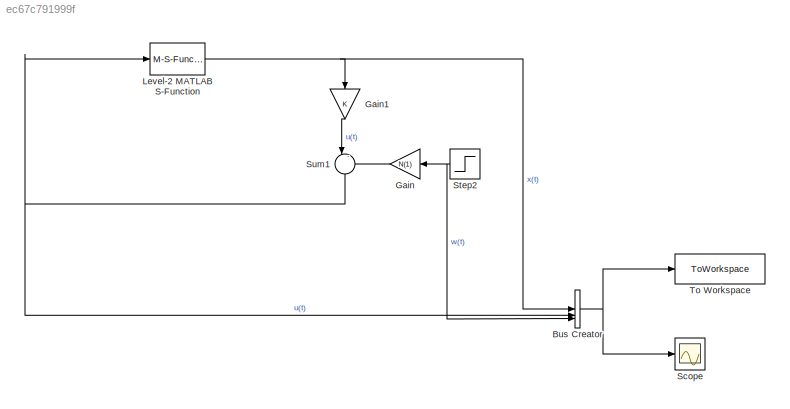
MODEL slx_ec67c791999f
KIND model
CONFIG AbsTol = auto
CONFIG EnableMultiTasking = off
CONFIG FixedStep = auto
CONFIG MaxStep = auto
CONFIG MinStep = auto
CONFIG RelTol = 1e-3
CONFIG SampleTimeConstraint = Unconstrained
CONFIG SolverName = VariableStepAuto
CONFIG StartTime = 0.0
CONFIG StopTime = 10.0
BLOCK [BusCreator] Bus Creator
  DisplayOption = bar
  InheritFromInputs = on
  Inputs = 3
BLOCK [Gain] Gain
  Gain = N(1)
  NameLocation = top
BLOCK [Gain] Gain1
  Gain = K
  Multiplication = Matrix(K*u)
  NameLocation = left
BLOCK [M-S-Function] Level-2 MATLAB S-Function
  FunctionName = plant_sfun
  Parameters = odeHandleSimulink, p, u, outIdx
BLOCK [Scope] Scope
  Floating = off
  NumInputPorts = 1
  ScopeSpecificationString = Simulink.scopes.TimeScopeBlockCfg('CurrentConfiguration', extmgr.ConfigurationSet(extmgr.Configuration('Core','General UI',true),extmgr.Configuration('Core','Source UI',true),extmgr.Configuration('Sources','WiredSimulink',true),extmgr.Configuration('Visuals','Time Domain',true,'SerializedDisplays',{struct('MinYLimReal','-0.27951','MaxYLimReal','2.51558','YLabelReal','','MinYLimMag','0.00000','MaxY...<+1469ch>
BLOCK [Step] Step2
  NameLocation = top
  SampleTime = 0
  Time = disorder_times(1)
BLOCK [Sum] Sum1
  Inputs = |-+
  NameLocation = left
BLOCK [ToWorkspace] To Workspace
  FixptAsFi = on
  MaxDataPoints = inf
  SampleTime = -1
  SaveFormat = Timeseries
  VariableName = simout
NET Bus Creator:1 -> Scope:1, To Workspace:1
LINE Gain1:1 -> Sum1:1
LINE Gain:1 -> Sum1:2
NET Level-2 MATLAB S-Function:1 -> Bus Creator:1, Gain1:1
NET Step2:1 -> Bus Creator:3, Gain:1
NET Sum1:1 -> Bus Creator:2, Level-2 MATLAB S-Function:1
note: NET lines group one-source signal fan-out (src -> all destinations, sorted); 1:1 wires keep LINE
